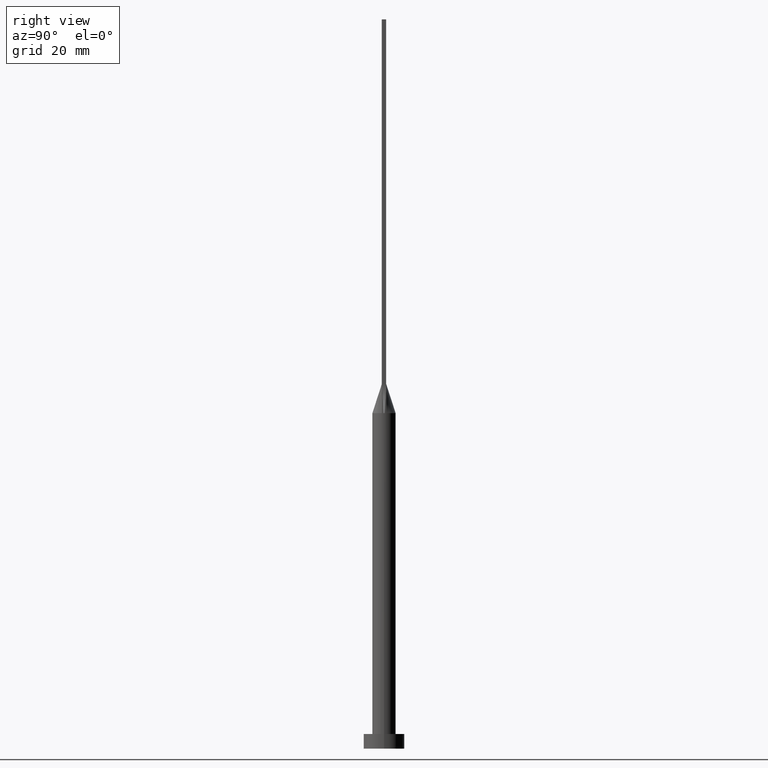
[diagram: clean part render]
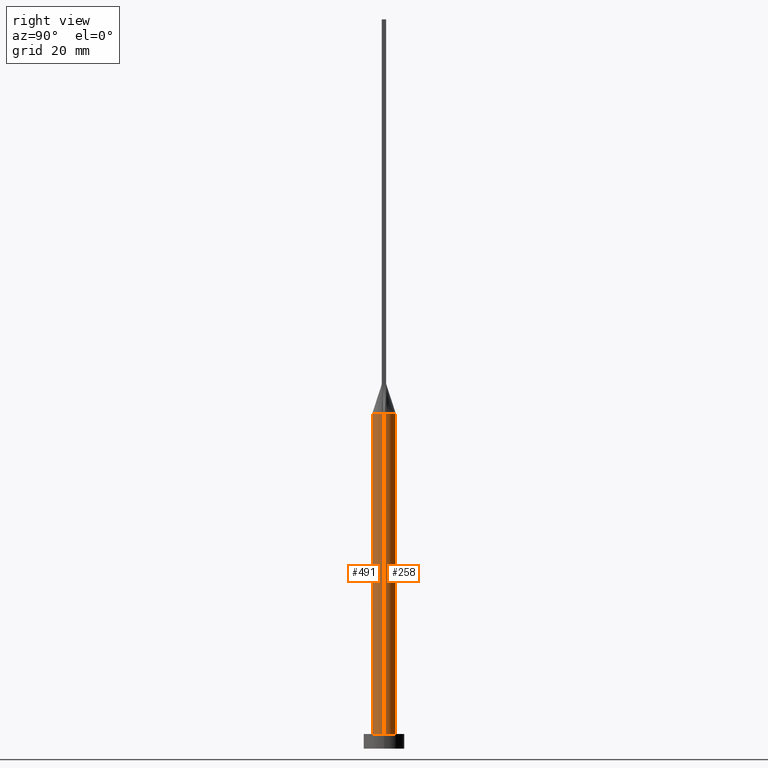
[diagram: same view with one multi-face feature highlighted, each face labeled with its STEP entity id]
A machine part, right view. The highlighted faces form ONE feature: a constant-radius fillet chain: 2 tangent blend faces with common blend radius 4 mm. The faces share edges in the B-rep.
Their STEP definitions:
[1] entity #491 (Cylinder):
#1 = EDGE_CURVE ( 'NONE', #512, #462, #522, .T. ) ;
#13 = CARTESIAN_POINT ( 'NONE',  ( 3.922705552857197908, -0.7845410930675295047, 115.0000000000000000 ) ) ;
#23 = VECTOR ( 'NONE', #65, 1000.000000000000000 ) ;
#24 = FACE_OUTER_BOUND ( 'NONE', #59, .T. ) ;
#33 = DIRECTION ( 'NONE',  ( 0.000000000000000000, 0.000000000000000000, 1.000000000000000000 ) ) ;
#39 = DIRECTION ( 'NONE',  ( -0.000000000000000000, -0.000000000000000000, -1.000000000000000000 ) ) ;
#42 = DIRECTION ( 'NONE',  ( 0.000000000000000000, 0.000000000000000000, 1.000000000000000000 ) ) ;
#59 = EDGE_LOOP ( 'NONE', ( #543, #530, #96, #294, #70, #193 ) ) ;
#65 = DIRECTION ( 'NONE',  ( -0.000000000000000000, -0.000000000000000000, -1.000000000000000000 ) ) ;
#70 = ORIENTED_EDGE ( 'NONE', *, *, #76, .T. ) ;
#76 = EDGE_CURVE ( 'NONE', #106, #549, #117, .T. ) ;
#77 = CARTESIAN_POINT ( 'NONE',  ( 4.000000000000000000, 4.898587196589412829E-16, 115.0000000000000000 ) ) ;
#85 = VERTEX_POINT ( 'NONE', #378 ) ;
#96 = ORIENTED_EDGE ( 'NONE', *, *, #269, .F. ) ;
#104 = CARTESIAN_POINT ( 'NONE',  ( 0.000000000000000000, 0.000000000000000000, 115.0000000000000000 ) ) ;
#106 = VERTEX_POINT ( 'NONE', #453 ) ;
#108 = AXIS2_PLACEMENT_3D ( 'NONE', #276, #191, #364 ) ;
#117 = LINE ( 'NONE', #295, #23 ) ;
#125 = DIRECTION ( 'NONE',  ( 1.000000000000000000, 0.000000000000000000, 0.000000000000000000 ) ) ;
#131 = CIRCLE ( 'NONE', #147, 4.000000000000000000 ) ;
#147 = AXIS2_PLACEMENT_3D ( 'NONE', #225, #33, #383 ) ;
#148 = CIRCLE ( 'NONE', #290, 4.000000000000000000 ) ;
#156 = VECTOR ( 'NONE', #39, 1000.000000000000000 ) ;
#185 = EDGE_CURVE ( 'NONE', #462, #532, #388, .T. ) ;
#188 = AXIS2_PLACEMENT_3D ( 'NONE', #104, #505, #372 ) ;
#190 = DIRECTION ( 'NONE',  ( 1.000000000000000000, 0.000000000000000000, 0.000000000000000000 ) ) ;
#191 = DIRECTION ( 'NONE',  ( 0.000000000000000000, 0.000000000000000000, 1.000000000000000000 ) ) ;
#193 = ORIENTED_EDGE ( 'NONE', *, *, #338, .T. ) ;
#224 = CIRCLE ( 'NONE', #446, 4.000000000000000000 ) ;
#225 = CARTESIAN_POINT ( 'NONE',  ( 0.000000000000000000, 0.000000000000000000, 115.0000000000000000 ) ) ;
#250 = EDGE_CURVE ( 'NONE', #106, #85, #148, .T. ) ;
#269 = EDGE_CURVE ( 'NONE', #85, #512, #131, .T. ) ;
#270 = DIRECTION ( 'NONE',  ( 0.000000000000000000, 0.000000000000000000, 1.000000000000000000 ) ) ;
#273 = CARTESIAN_POINT ( 'NONE',  ( 0.000000000000000000, 0.000000000000000000, 5.000000000000000000 ) ) ;
#276 = CARTESIAN_POINT ( 'NONE',  ( 0.000000000000000000, 0.000000000000000000, 115.0000000000000000 ) ) ;
#290 = AXIS2_PLACEMENT_3D ( 'NONE', #478, #42, #125 ) ;
#294 = ORIENTED_EDGE ( 'NONE', *, *, #250, .F. ) ;
#295 = CARTESIAN_POINT ( 'NONE',  ( -4.000000000000000000, 0.000000000000000000, 115.0000000000000000 ) ) ;
#300 = CARTESIAN_POINT ( 'NONE',  ( -4.000000000000000000, 0.000000000000000000, 5.000000000000000000 ) ) ;
#338 = EDGE_CURVE ( 'NONE', #549, #532, #224, .T. ) ;
#364 = DIRECTION ( 'NONE',  ( 1.000000000000000000, -1.421085471520200372E-14, 0.000000000000000000 ) ) ;
#372 = DIRECTION ( 'NONE',  ( -1.000000000000000000, 0.000000000000000000, 0.000000000000000000 ) ) ;
#378 = CARTESIAN_POINT ( 'NONE',  ( -3.922691619086878134, -0.7845384300002018474, 115.0000000000000000 ) ) ;
#383 = DIRECTION ( 'NONE',  ( 1.000000000000000000, 0.000000000000000000, 0.000000000000000000 ) ) ;
#388 = LINE ( 'NONE', #77, #156 ) ;
#446 = AXIS2_PLACEMENT_3D ( 'NONE', #273, #270, #190 ) ;
#453 = CARTESIAN_POINT ( 'NONE',  ( -3.999622889843378992, -9.724176664205578004E-16, 115.0000000000000000 ) ) ;
#462 = VERTEX_POINT ( 'NONE', #472 ) ;
#472 = CARTESIAN_POINT ( 'NONE',  ( 3.999622889843378992, 9.846808768795811108E-16, 115.0000000000000000 ) ) ;
#478 = CARTESIAN_POINT ( 'NONE',  ( 0.000000000000000000, 0.000000000000000000, 115.0000000000000000 ) ) ;
#491 = ADVANCED_FACE ( 'NONE', ( #24 ), #552, .T. ) ;
#505 = DIRECTION ( 'NONE',  ( -0.000000000000000000, -0.000000000000000000, -1.000000000000000000 ) ) ;
#512 = VERTEX_POINT ( 'NONE', #13 ) ;
#522 = CIRCLE ( 'NONE', #108, 4.000000000000000000 ) ;
#530 = ORIENTED_EDGE ( 'NONE', *, *, #1, .F. ) ;
#532 = VERTEX_POINT ( 'NONE', #548 ) ;
#543 = ORIENTED_EDGE ( 'NONE', *, *, #185, .F. ) ;
#548 = CARTESIAN_POINT ( 'NONE',  ( 4.000000000000000000, 4.898587196589412829E-16, 5.000000000000000000 ) ) ;
#549 = VERTEX_POINT ( 'NONE', #300 ) ;
#552 = CYLINDRICAL_SURFACE ( 'NONE', #188, 4.000000000000000000 ) ;
[2] entity #258 (Cylinder):
#9 = ORIENTED_EDGE ( 'NONE', *, *, #76, .F. ) ;
#12 = CARTESIAN_POINT ( 'NONE',  ( 3.858220138661116128, 1.104977361065556440, 115.0000000000000000 ) ) ;
#23 = VECTOR ( 'NONE', #65, 1000.000000000000000 ) ;
#39 = DIRECTION ( 'NONE',  ( -0.000000000000000000, -0.000000000000000000, -1.000000000000000000 ) ) ;
#46 = CARTESIAN_POINT ( 'NONE',  ( 0.000000000000000000, 0.000000000000000000, 115.0000000000000000 ) ) ;
#48 = CIRCLE ( 'NONE', #373, 4.000000000000000000 ) ;
#57 = CARTESIAN_POINT ( 'NONE',  ( 3.390424152328985752, 2.159240079384420419, 115.0000000000000284 ) ) ;
#65 = DIRECTION ( 'NONE',  ( -0.000000000000000000, -0.000000000000000000, -1.000000000000000000 ) ) ;
#76 = EDGE_CURVE ( 'NONE', #106, #549, #117, .T. ) ;
#77 = CARTESIAN_POINT ( 'NONE',  ( 4.000000000000000000, 4.898587196589412829E-16, 115.0000000000000000 ) ) ;
#81 = DIRECTION ( 'NONE',  ( -1.000000000000000000, 0.000000000000000000, 0.000000000000000000 ) ) ;
#84 = CARTESIAN_POINT ( 'NONE',  ( -0.5465359351457050874, 4.000000000000000000, 115.0000000000000000 ) ) ;
#90 = CARTESIAN_POINT ( 'NONE',  ( -3.858220138661117460, 1.104977361065555996, 115.0000000000000284 ) ) ;
#106 = VERTEX_POINT ( 'NONE', #453 ) ;
#112 = CIRCLE ( 'NONE', #546, 4.000000000000000000 ) ;
#117 = LINE ( 'NONE', #295, #23 ) ;
#138 = CARTESIAN_POINT ( 'NONE',  ( -3.922691944042750123, 0.7845383302616953936, 115.0000000000000000 ) ) ;
#141 = EDGE_CURVE ( 'NONE', #458, #356, #430, .T. ) ;
#143 = CARTESIAN_POINT ( 'NONE',  ( 2.055729527861830608, 3.471178582471582619, 114.9999999999999858 ) ) ;
#144 = CARTESIAN_POINT ( 'NONE',  ( -3.922691944042750123, 0.7845383302616953936, 115.0000000000000000 ) ) ;
#152 = DIRECTION ( 'NONE',  ( 1.000000000000000000, 0.000000000000000000, 0.000000000000000000 ) ) ;
#156 = VECTOR ( 'NONE', #39, 1000.000000000000000 ) ;
#162 = EDGE_CURVE ( 'NONE', #462, #458, #48, .T. ) ;
#182 = CARTESIAN_POINT ( 'NONE',  ( -2.055729527861832828, 3.471178582471583063, 114.9999999999999432 ) ) ;
#185 = EDGE_CURVE ( 'NONE', #462, #532, #388, .T. ) ;
#206 = CARTESIAN_POINT ( 'NONE',  ( 0.000000000000000000, 0.000000000000000000, 5.000000000000000000 ) ) ;
#226 = DIRECTION ( 'NONE',  ( 0.000000000000000000, 0.000000000000000000, 1.000000000000000000 ) ) ;
#229 = CARTESIAN_POINT ( 'NONE',  ( 0.5465359351457045323, 4.000000000000000888, 115.0000000000000426 ) ) ;
#231 = DIRECTION ( 'NONE',  ( 1.000000000000000000, 0.000000000000000000, 0.000000000000000000 ) ) ;
#233 = CARTESIAN_POINT ( 'NONE',  ( -3.390424152328988416, 2.159240079384419975, 115.0000000000000284 ) ) ;
#244 = ORIENTED_EDGE ( 'NONE', *, *, #369, .F. ) ;
#246 = AXIS2_PLACEMENT_3D ( 'NONE', #263, #309, #81 ) ;
#247 = DIRECTION ( 'NONE',  ( 0.000000000000000000, 0.000000000000000000, 1.000000000000000000 ) ) ;
#258 = ADVANCED_FACE ( 'NONE', ( #482 ), #342, .T. ) ;
#263 = CARTESIAN_POINT ( 'NONE',  ( 0.000000000000000000, 0.000000000000000000, 115.0000000000000000 ) ) ;
#295 = CARTESIAN_POINT ( 'NONE',  ( -4.000000000000000000, 0.000000000000000000, 115.0000000000000000 ) ) ;
#300 = CARTESIAN_POINT ( 'NONE',  ( -4.000000000000000000, 0.000000000000000000, 5.000000000000000000 ) ) ;
#309 = DIRECTION ( 'NONE',  ( -0.000000000000000000, -0.000000000000000000, -1.000000000000000000 ) ) ;
#314 = CARTESIAN_POINT ( 'NONE',  ( -3.140797583654740599, 2.520780954342106916, 114.9999999999999716 ) ) ;
#317 = EDGE_LOOP ( 'NONE', ( #475, #520, #563, #9, #244, #493 ) ) ;
#342 = CYLINDRICAL_SURFACE ( 'NONE', #246, 4.000000000000000000 ) ;
#356 = VERTEX_POINT ( 'NONE', #144 ) ;
#369 = EDGE_CURVE ( 'NONE', #356, #106, #112, .T. ) ;
#373 = AXIS2_PLACEMENT_3D ( 'NONE', #46, #226, #231 ) ;
#377 = CIRCLE ( 'NONE', #547, 4.000000000000000000 ) ;
#388 = LINE ( 'NONE', #77, #156 ) ;
#395 = CARTESIAN_POINT ( 'NONE',  ( -3.748423346357937280, 1.451418640363469015, 115.0000000000000284 ) ) ;
#399 = CARTESIAN_POINT ( 'NONE',  ( 1.091295599582912113, 3.883835547170277014, 115.0000000000000284 ) ) ;
#400 = DIRECTION ( 'NONE',  ( 1.000000000000000000, 0.000000000000000000, 0.000000000000000000 ) ) ;
#418 = CARTESIAN_POINT ( 'NONE',  ( 3.922678046951852959, 0.7845356715334603770, 115.0000000000000000 ) ) ;
#430 = B_SPLINE_CURVE_WITH_KNOTS ( 'NONE', 3,
 ( #508, #12, #456, #57, #435, #487, #143, #399, #229, #84, #438, #182, #494, #314, #233, #395, #90, #138 ),
 .UNSPECIFIED., .F., .F.,
 ( 4, 2, 2, 2, 2, 2, 2, 2, 4 ),
 ( 0.000000000000000000, 0.1249999999999999167, 0.2499999999999998890, 0.3749999999999998335, 0.4999999999999998890, 0.6249999999999998890, 0.7499999999999998890, 0.8750000000000000000, 1.000000000000000000 ),
 .UNSPECIFIED. ) ;
#435 = CARTESIAN_POINT ( 'NONE',  ( 3.140797583654741931, 2.520780954342106028, 114.9999999999999858 ) ) ;
#438 = CARTESIAN_POINT ( 'NONE',  ( -1.091295599582913445, 3.883835547170275682, 115.0000000000000142 ) ) ;
#443 = DIRECTION ( 'NONE',  ( 0.000000000000000000, 0.000000000000000000, 1.000000000000000000 ) ) ;
#453 = CARTESIAN_POINT ( 'NONE',  ( -3.999622889843378992, -9.724176664205578004E-16, 115.0000000000000000 ) ) ;
#456 = CARTESIAN_POINT ( 'NONE',  ( 3.748423346357935948, 1.451418640363468349, 115.0000000000000142 ) ) ;
#458 = VERTEX_POINT ( 'NONE', #418 ) ;
#462 = VERTEX_POINT ( 'NONE', #472 ) ;
#472 = CARTESIAN_POINT ( 'NONE',  ( 3.999622889843378992, 9.846808768795811108E-16, 115.0000000000000000 ) ) ;
#475 = ORIENTED_EDGE ( 'NONE', *, *, #162, .F. ) ;
#482 = FACE_OUTER_BOUND ( 'NONE', #317, .T. ) ;
#487 = CARTESIAN_POINT ( 'NONE',  ( 2.474203369347174331, 3.177619198138197820, 114.9999999999999716 ) ) ;
#492 = CARTESIAN_POINT ( 'NONE',  ( 0.000000000000000000, 0.000000000000000000, 115.0000000000000000 ) ) ;
#493 = ORIENTED_EDGE ( 'NONE', *, *, #141, .F. ) ;
#494 = CARTESIAN_POINT ( 'NONE',  ( -2.474203369347175219, 3.177619198138199152, 114.9999999999999858 ) ) ;
#508 = CARTESIAN_POINT ( 'NONE',  ( 3.922678046951852959, 0.7845356715334603770, 115.0000000000000000 ) ) ;
#520 = ORIENTED_EDGE ( 'NONE', *, *, #185, .T. ) ;
#529 = EDGE_CURVE ( 'NONE', #532, #549, #377, .T. ) ;
#532 = VERTEX_POINT ( 'NONE', #548 ) ;
#546 = AXIS2_PLACEMENT_3D ( 'NONE', #492, #443, #400 ) ;
#547 = AXIS2_PLACEMENT_3D ( 'NONE', #206, #247, #152 ) ;
#548 = CARTESIAN_POINT ( 'NONE',  ( 4.000000000000000000, 4.898587196589412829E-16, 5.000000000000000000 ) ) ;
#549 = VERTEX_POINT ( 'NONE', #300 ) ;
#563 = ORIENTED_EDGE ( 'NONE', *, *, #529, .T. ) ;